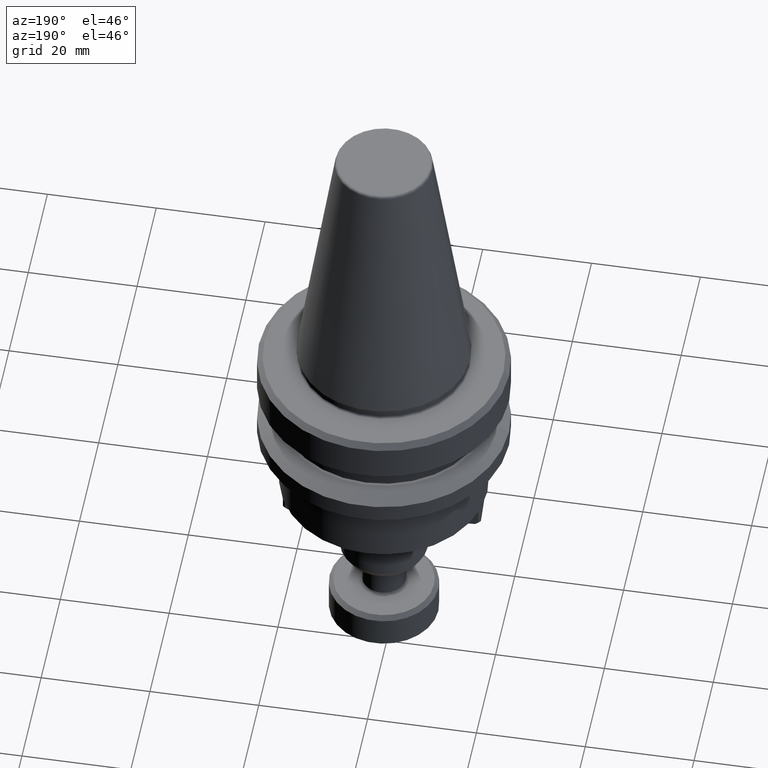
[diagram: clean part render]
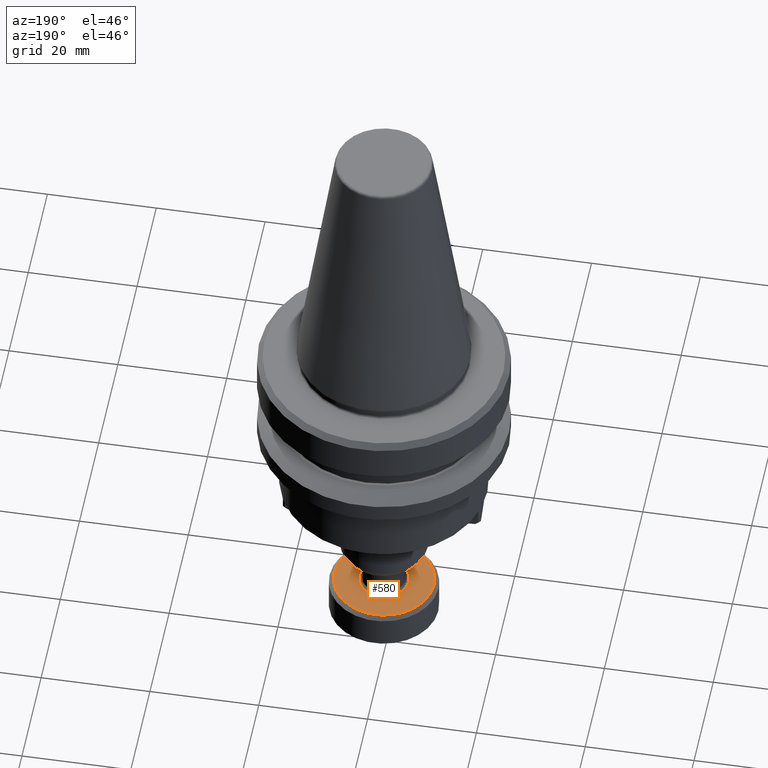
[diagram: same view with one face highlighted and labeled with its STEP entity id]
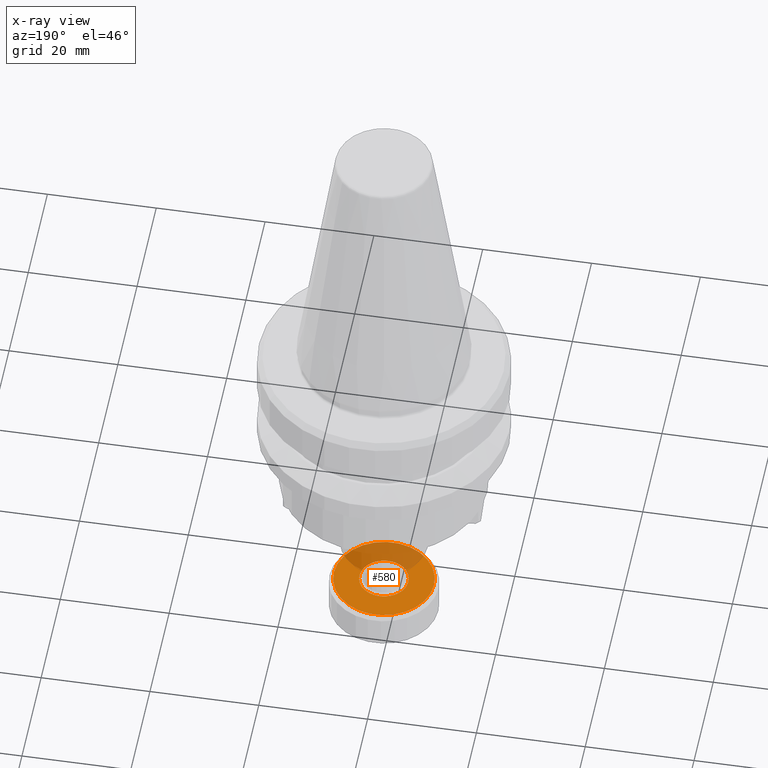
[diagram: x-ray of the same camera — body ghosted, the highlighted face saturated]
A machine part, auxiliary view. The second image highlights one B-rep face of the part: STEP entity #580.
The next image is the same camera in x-ray: the body ghosted, the highlighted face saturated — about 32% of this face is hidden behind the body in this view.
In plain terms, the highlighted planar face has unit normal (-0, -0, -1).
Its self-contained STEP definition (entity closure, byte-faithful):
#44 = CARTESIAN_POINT ( 'NONE',  ( 38.36261060714339500, 56.23795810838866100, 16.07808018129033900 ) ) ;
#49 = CARTESIAN_POINT ( 'NONE',  ( 46.10113051853559100, 52.28122963473677500, 16.07808018129033600 ) ) ;
#68 = CARTESIAN_POINT ( 'NONE',  ( 41.10824882425460200, 48.75618803442938500, 16.07808018129033600 ) ) ;
#123 = CIRCLE ( 'NONE', #3481, 9.200000000000061500 ) ;
#152 = CARTESIAN_POINT ( 'NONE',  ( 44.93848420210185400, 56.34153861001497200, 16.07808018129033200 ) ) ;
#161 = CARTESIAN_POINT ( 'NONE',  ( 46.10480471988822200, 54.15330075542826200, 16.07808018129033600 ) ) ;
#169 = CARTESIAN_POINT ( 'NONE',  ( 42.66659480719015100, 48.82238925279947500, 16.07808018129033200 ) ) ;
#174 = CARTESIAN_POINT ( 'NONE',  ( 37.25032348748377600, 53.90157765005577100, 16.07808018129032800 ) ) ;
#175 = CARTESIAN_POINT ( 'NONE',  ( 45.47840010664511800, 50.74679128583353100, 16.07808018129033600 ) ) ;
#178 = CARTESIAN_POINT ( 'NONE',  ( 42.84022122352584500, 48.86358545194721600, 16.07808018129032800 ) ) ;
#184 = CARTESIAN_POINT ( 'NONE',  ( 44.22719130882006800, 49.46968674650050000, 16.07808018129032800 ) ) ;
#193 = CARTESIAN_POINT ( 'NONE',  ( 39.54801287624982100, 57.16960645895795100, 16.07808018113062000 ) ) ;
#208 = CARTESIAN_POINT ( 'NONE',  ( 41.87846747309731700, 57.71765971664972700, 16.07808018129033200 ) ) ;
#247 = CARTESIAN_POINT ( 'NONE',  ( 40.37910425474137100, 57.52167928917994300, 16.07808018129033200 ) ) ;
#249 = CARTESIAN_POINT ( 'NONE',  ( 46.20077907606975000, 53.08409253390661300, 16.07808018129032500 ) ) ;
#254 = CARTESIAN_POINT ( 'NONE',  ( 37.21184208134368300, 52.86210188235280300, 16.07808018129033600 ) ) ;
#284 = CARTESIAN_POINT ( 'NONE',  ( 45.80026597418010000, 51.36419616246598000, 16.07808018129033600 ) ) ;
#321 = CARTESIAN_POINT ( 'NONE',  ( 41.69949667897864700, 53.21725052380196500, 16.07808018129027500 ) ) ;
#322 = CARTESIAN_POINT ( 'NONE',  ( 45.99434977421467600, 51.85777594774702900, 16.07808018129033200 ) ) ;
#336 = CARTESIAN_POINT ( 'NONE',  ( 38.52265960716115200, 56.40437465809249300, 16.07808018129033900 ) ) ;
#337 = EDGE_LOOP ( 'NONE', ( #2168, #1628 ) ) ;
#424 = CARTESIAN_POINT ( 'NONE',  ( 41.52052588485839400, 48.71684133095409700, 16.07808018129033600 ) ) ;
#426 = CARTESIAN_POINT ( 'NONE',  ( 43.65818578562450400, 57.27500901164050600, 16.07808018129033600 ) ) ;
#438 = CARTESIAN_POINT ( 'NONE',  ( 45.80834317649598800, 51.38216805408726600, 16.07808018129033600 ) ) ;
#454 = CARTESIAN_POINT ( 'NONE',  ( 44.87633375079614200, 50.03012638951145900, 16.07808018129033200 ) ) ;
#473 = CARTESIAN_POINT ( 'NONE',  ( 37.20021330973987300, 53.13342522475311100, 16.07808018129033200 ) ) ;
#497 = CIRCLE ( 'NONE', #1167, 9.200000000000061500 ) ;
#514 = CARTESIAN_POINT ( 'NONE',  ( 43.85098048182903300, 49.26489458871217400, 16.07808018113062000 ) ) ;
#515 = CARTESIAN_POINT ( 'NONE',  ( 43.24251136859881200, 57.44449410940730200, 16.07808018129033200 ) ) ;
#532 = CARTESIAN_POINT ( 'NONE',  ( 46.18844409206621300, 52.82836411246894000, 16.07808018129033600 ) ) ;
#541 = CARTESIAN_POINT ( 'NONE',  ( 39.29644597859084600, 49.41252362093741400, 16.07808018129033200 ) ) ;
#559 = CARTESIAN_POINT ( 'NONE',  ( 42.70396627009851200, 48.83074286362919000, 16.07808018129033600 ) ) ;
#573 = CARTESIAN_POINT ( 'NONE',  ( 39.54801287624982100, 57.16960645895795100, 16.07808018113062000 ) ) ;
#580 = ADVANCED_FACE ( 'NONE', ( #2099, #2824 ), #3461, .F. ) ;
#582 = EDGE_CURVE ( 'NONE', #2724, #2669, #3174, .T. ) ;
#615 = CARTESIAN_POINT ( 'NONE',  ( 39.54801287624982100, 57.16960645895795100, 16.07808018113062000 ) ) ;
#645 = CARTESIAN_POINT ( 'NONE',  ( 42.74952783016098600, 48.84130137958861400, 16.07808018129033900 ) ) ;
#656 = CARTESIAN_POINT ( 'NONE',  ( 41.99047054747984500, 48.71187119533995300, 16.07808018129033900 ) ) ;
#673 = CARTESIAN_POINT ( 'NONE',  ( 37.34138517551197400, 54.34936489404386600, 16.07808018129033200 ) ) ;
#679 = CARTESIAN_POINT ( 'NONE',  ( 37.55120955811170100, 54.96214507282152800, 16.07808018129033600 ) ) ;
#689 = B_SPLINE_CURVE_WITH_KNOTS ( 'NONE', 3,
 ( #193, #2908, #2349, #247, #1595, #1864, #3490, #2944, #3216, #3493, #2302, #2851, #208, #968, #1243, #1773, #3165, #1654, #1857, #715, #3118, #2625, #2090, #1583, #2886, #515, #3480, #426, #1286, #2584, #1508, #704, #964, #2032, #2883, #3394, #1542, #152, #1809, #2070, #1007, #1783, #2536, #2597, #1070, #3420, #1497, #161, #2859, #3405, #2315, #2193, #3278, #1333, #249, #532, #3144, #2946, #3220, #49, #818, #1346, #322, #1523, #1257, #3131, #438, #284, #1120, #2176, #175, #983, #1008, #2046, #2627, #2337, #2884, #454, #740, #184, #1794 ),
 .UNSPECIFIED., .F., .F.,
 ( 4, 1, 1, 1, 1, 1, 2, 2, 1, 1, 1, 1, 1, 2, 2, 1, 1, 1, 2, 2, 1, 1, 1, 2, 2, 1, 1, 2, 2, 2, 1, 1, 2, 2, 1, 1, 1, 2, 2, 1, 1, 1, 2, 2, 1, 1, 1, 1, 2, 2, 1, 1, 1, 1, 1, 2, 2, 4 ),
 ( 0.0000000000000000000, 0.06250000000001285100, 0.09375000000001927600, 0.1093750000000215000, 0.1171875000000226200, 0.1210937500000231800, 0.1230468750000224700, 0.1250000000000217600, 0.1875000000000061900, 0.2187499999999992000, 0.2343749999999956700, 0.2421874999999947800, 0.2460937499999934500, 0.2480468749999927000, 0.2499999999999919200, 0.2812499999999751300, 0.2968749999999674100, 0.3046874999999635300, 0.3085937499999615900, 0.3124999999999596400, 0.3437499999999452100, 0.3593749999999388300, 0.3671874999999356600, 0.3710937499999350000, 0.3749999999999342700, 0.4062499999999248900, 0.4218749999999197300, 0.4296874999999175700, 0.4374999999999153500, 0.4999999999999033000, 0.5312499999998975300, 0.5468749999998944200, 0.5546874999998934200, 0.5624999999998925300, 0.5937499999998874200, 0.6093749999998842000, 0.6171874999998832000, 0.6210937499998826500, 0.6249999999998820900, 0.6562499999998832000, 0.6718749999998830900, 0.6796874999998824300, 0.6835937499998822100, 0.6874999999998819800, 0.7187499999998832000, 0.7343749999998836500, 0.7421874999998836500, 0.7460937499998833200, 0.7480468749998834300, 0.7499999999998836500, 0.8124999999998781000, 0.8437499999998748800, 0.8593749999998726600, 0.8671874999998719900, 0.8710937499998722100, 0.8730468749998729900, 0.8749999999998736600, 1.000000000000000000 ),
 .UNSPECIFIED. ) ;
#704 = CARTESIAN_POINT ( 'NONE',  ( 44.13858180012547900, 56.99896671346100200, 16.07808018129033200 ) ) ;
#715 = CARTESIAN_POINT ( 'NONE',  ( 42.50612869445569000, 57.64716810146793300, 16.07808018129033200 ) ) ;
#725 = CARTESIAN_POINT ( 'NONE',  ( 37.19821428188720300, 53.35040851369407000, 16.07808018129033900 ) ) ;
#740 = CARTESIAN_POINT ( 'NONE',  ( 44.56739141210816500, 49.72318998059557100, 16.07808018129033600 ) ) ;
#753 = EDGE_LOOP ( 'NONE', ( #3168, #3082 ) ) ;
#797 = CARTESIAN_POINT ( 'NONE',  ( 38.62059703964018100, 49.93311251137426900, 16.07808018129033200 ) ) ;
#816 = CARTESIAN_POINT ( 'NONE',  ( 37.27655645001110700, 54.04857072999870800, 16.07808018129033900 ) ) ;
#818 = CARTESIAN_POINT ( 'NONE',  ( 46.09626902699262300, 52.25870783131547600, 16.07808018129033600 ) ) ;
#873 = CARTESIAN_POINT ( 'NONE',  ( 40.39704652929557200, 48.90854132624748700, 16.07808018129033900 ) ) ;
#916 = DIRECTION ( 'NONE',  ( 4.513101726118517000E-016, -0.0000000000000000000, -1.000000000000000000 ) ) ;
#962 = CARTESIAN_POINT ( 'NONE',  ( 42.67133533011433100, 48.82343725327101000, 16.07808018129033900 ) ) ;
#964 = CARTESIAN_POINT ( 'NONE',  ( 44.15540880190287300, 56.98806422663084700, 16.07808018129033600 ) ) ;
#968 = CARTESIAN_POINT ( 'NONE',  ( 42.11393145277901300, 57.69917563864250100, 16.07808018129033200 ) ) ;
#977 = DIRECTION ( 'NONE',  ( 0.4781075118440847900, -0.8783013190917217100, 5.283347858263350400E-017 ) ) ;
#983 = CARTESIAN_POINT ( 'NONE',  ( 45.19245328965641300, 50.37382032113588100, 16.07808018129033200 ) ) ;
#1007 = CARTESIAN_POINT ( 'NONE',  ( 45.47243270684744900, 55.69842843133844200, 16.07808018129033600 ) ) ;
#1008 = CARTESIAN_POINT ( 'NONE',  ( 45.03638275081394900, 50.19654293921498600, 16.07808018129033600 ) ) ;
#1070 = CARTESIAN_POINT ( 'NONE',  ( 46.01016003994361400, 54.50986032203771000, 16.07808018129033200 ) ) ;
#1099 = CARTESIAN_POINT ( 'NONE',  ( 40.21048228414555600, 48.97068209521165700, 16.07808018129034300 ) ) ;
#1120 = CARTESIAN_POINT ( 'NONE',  ( 45.79564429365679200, 51.35401245577679000, 16.07808018129033200 ) ) ;
#1165 = CARTESIAN_POINT ( 'NONE',  ( 37.40464358374154600, 54.57672509985524600, 16.07808018129033600 ) ) ;
#1167 = AXIS2_PLACEMENT_3D ( 'NONE', #1511, #916, #1406 ) ;
#1173 = CARTESIAN_POINT ( 'NONE',  ( 38.52400896482952000, 50.02840069584610200, 16.07808018129033200 ) ) ;
#1188 = CARTESIAN_POINT ( 'NONE',  ( 37.19984164685157400, 53.15736543615418700, 16.07808018129033200 ) ) ;
#1243 = CARTESIAN_POINT ( 'NONE',  ( 42.23178635471251100, 57.68593384708885500, 16.07808018129033600 ) ) ;
#1244 = CARTESIAN_POINT ( 'NONE',  ( 37.57862586717075700, 55.02534336938225600, 16.07808018129033200 ) ) ;
#1257 = CARTESIAN_POINT ( 'NONE',  ( 45.84778379984511800, 51.47235597478167800, 16.07808018129033200 ) ) ;
#1286 = CARTESIAN_POINT ( 'NONE',  ( 43.92020916514362500, 57.13284382205928600, 16.07808018129033200 ) ) ;
#1290 = CARTESIAN_POINT ( 'NONE',  ( 43.37234923443308800, 49.02996701841351500, 16.07808018129033600 ) ) ;
#1333 = CARTESIAN_POINT ( 'NONE',  ( 46.19915171110570600, 53.27713561145016300, 16.07808018129033200 ) ) ;
#1346 = CARTESIAN_POINT ( 'NONE',  ( 46.05760818244468900, 52.08513615355908400, 16.07808018129033600 ) ) ;
#1368 = CARTESIAN_POINT ( 'NONE',  ( 50.89949667897870700, 53.21725052380196500, 16.07808018129027900 ) ) ;
#1371 = CARTESIAN_POINT ( 'NONE',  ( 42.68439384506170600, 48.82634282540798400, 16.07808018129033200 ) ) ;
#1406 = DIRECTION ( 'NONE',  ( -1.000000000000000000, 0.0000000000000000000, -3.771137991253903400E-016 ) ) ;
#1442 = CARTESIAN_POINT ( 'NONE',  ( 38.50334320522002700, 56.38501834668301900, 16.07808018129033900 ) ) ;
#1469 = CARTESIAN_POINT ( 'NONE',  ( 37.29786283942160500, 54.15327141286636700, 16.07808018129033900 ) ) ;
#1497 = CARTESIAN_POINT ( 'NONE',  ( 46.04859591474245000, 54.37373382426901000, 16.07808018129032800 ) ) ;
#1508 = CARTESIAN_POINT ( 'NONE',  ( 44.10254737936727300, 57.02197742666604800, 16.07808018129033600 ) ) ;
#1511 = CARTESIAN_POINT ( 'NONE',  ( 41.69949667897864700, 53.21725052380196500, 16.07808018129027500 ) ) ;
#1523 = CARTESIAN_POINT ( 'NONE',  ( 45.90005472082230400, 51.59964259556007000, 16.07808018129033200 ) ) ;
#1542 = CARTESIAN_POINT ( 'NONE',  ( 44.87498439312689400, 56.40610035175822600, 16.07808018129033200 ) ) ;
#1583 = CARTESIAN_POINT ( 'NONE',  ( 43.18851107381208700, 57.46381895239228000, 16.07808018129032800 ) ) ;
#1588 = DIRECTION ( 'NONE',  ( -1.987432607023972400E-016, -1.683410023859891200E-016, -1.000000000000000000 ) ) ;
#1595 = CARTESIAN_POINT ( 'NONE',  ( 40.55877213443108800, 57.57091559565655100, 16.07808018129033600 ) ) ;
#1628 = ORIENTED_EDGE ( 'NONE', *, *, #3279, .T. ) ;
#1640 = AXIS2_PLACEMENT_3D ( 'NONE', #2040, #1588, #977 ) ;
#1654 = CARTESIAN_POINT ( 'NONE',  ( 42.33286995622842100, 57.67246482351339400, 16.07808018129033600 ) ) ;
#1692 = CARTESIAN_POINT ( 'NONE',  ( 38.20654006830101700, 56.06068072646761600, 16.07808018129033600 ) ) ;
#1718 = CARTESIAN_POINT ( 'NONE',  ( 39.35070723331895000, 49.37841276119067400, 16.07808018129033600 ) ) ;
#1748 = CARTESIAN_POINT ( 'NONE',  ( 38.85533774363953800, 49.72165441127236100, 16.07808018129033900 ) ) ;
#1767 = CARTESIAN_POINT ( 'NONE',  ( 37.20127480428192300, 53.08809782196528500, 16.07808018129033900 ) ) ;
#1773 = CARTESIAN_POINT ( 'NONE',  ( 42.29074453370241600, 57.67831301317450300, 16.07808018129033600 ) ) ;
#1783 = CARTESIAN_POINT ( 'NONE',  ( 45.74156256849978100, 55.20388727475618400, 16.07808018129033200 ) ) ;
#1794 = CARTESIAN_POINT ( 'NONE',  ( 43.85098048182903300, 49.26489458871217400, 16.07808018113062000 ) ) ;
#1809 = CARTESIAN_POINT ( 'NONE',  ( 44.96876373387984000, 56.30984548613906100, 16.07808018129032800 ) ) ;
#1823 = CARTESIAN_POINT ( 'NONE',  ( 39.17180204913555700, 56.96481430110255700, 16.07808018129033200 ) ) ;
#1857 = CARTESIAN_POINT ( 'NONE',  ( 42.33994785451520900, 57.67145414460813400, 16.07808018129033600 ) ) ;
#1864 = CARTESIAN_POINT ( 'NONE',  ( 40.64946552779610300, 57.59319966801525200, 16.07808018129033200 ) ) ;
#1874 = CARTESIAN_POINT ( 'NONE',  ( 37.53915019139894600, 51.48413495155018900, 16.07808018129033900 ) ) ;
#1939 = CARTESIAN_POINT ( 'NONE',  ( 37.29418863806940000, 52.28120029217608800, 16.07808018129033900 ) ) ;
#1993 = CARTESIAN_POINT ( 'NONE',  ( 37.49893863713417400, 54.83485845204260300, 16.07808018129033600 ) ) ;
#1995 = CARTESIAN_POINT ( 'NONE',  ( 37.38883331801318400, 51.92464072556658300, 16.07808018129033600 ) ) ;
#2003 = CARTESIAN_POINT ( 'NONE',  ( 41.16720700324427200, 48.74856720051504100, 16.07808018129033200 ) ) ;
#2020 = EDGE_CURVE ( 'NONE', #3222, #3152, #123, .T. ) ;
#2027 = CARTESIAN_POINT ( 'NONE',  ( 37.30272433096471500, 54.17579321628859600, 16.07808018129033200 ) ) ;
#2029 = CARTESIAN_POINT ( 'NONE',  ( 37.59065018146113600, 55.05233299351644400, 16.07808018129034300 ) ) ;
#2032 = CARTESIAN_POINT ( 'NONE',  ( 44.32638896041812200, 56.87544329870674200, 16.07808018129033200 ) ) ;
#2040 = CARTESIAN_POINT ( 'NONE',  ( 44.00797463670590300, 61.04155922417206900, 16.07808018129033200 ) ) ;
#2044 = CARTESIAN_POINT ( 'NONE',  ( 41.08297444868263400, 48.75966837856502400, 16.07808018129033900 ) ) ;
#2046 = CARTESIAN_POINT ( 'NONE',  ( 44.95507319880566400, 50.11020627336154100, 16.07808018129032800 ) ) ;
#2065 = CARTESIAN_POINT ( 'NONE',  ( 38.51534865105298900, 56.39707810548269900, 16.07808018129033600 ) ) ;
#2070 = CARTESIAN_POINT ( 'NONE',  ( 45.25570097651504400, 56.00003807204827000, 16.07808018129033600 ) ) ;
#2090 = CARTESIAN_POINT ( 'NONE',  ( 43.13275123721832900, 57.48324737046847600, 16.07808018129033200 ) ) ;
#2099 = FACE_OUTER_BOUND ( 'NONE', #753, .T. ) ;
#2107 = CARTESIAN_POINT ( 'NONE',  ( 38.83160194584745300, 56.71131106700747200, 16.07808018129033900 ) ) ;
#2120 = CARTESIAN_POINT ( 'NONE',  ( 41.28506190517737200, 48.73532540896135900, 16.07808018129033600 ) ) ;
#2154 = CARTESIAN_POINT ( 'NONE',  ( 43.01988910321534100, 48.91282175842368900, 16.07808018129033600 ) ) ;
#2168 = ORIENTED_EDGE ( 'NONE', *, *, #582, .T. ) ;
#2176 = CARTESIAN_POINT ( 'NONE',  ( 45.67859293144182700, 51.09805131418446000, 16.07808018129033200 ) ) ;
#2180 = CARTESIAN_POINT ( 'NONE',  ( 37.92059325131237600, 55.68770976176981000, 16.07808018129033900 ) ) ;
#2193 = CARTESIAN_POINT ( 'NONE',  ( 46.19771855367551400, 53.34640322563885900, 16.07808018129033200 ) ) ;
#2270 = CARTESIAN_POINT ( 'NONE',  ( 38.44392015915163100, 56.32429477424224000, 16.07808018129033600 ) ) ;
#2299 = CARTESIAN_POINT ( 'NONE',  ( 40.66144783908720200, 48.83359912296379700, 16.07808018129033600 ) ) ;
#2302 = CARTESIAN_POINT ( 'NONE',  ( 41.00739875121313800, 57.67203621924680600, 16.07808018129033200 ) ) ;
#2315 = CARTESIAN_POINT ( 'NONE',  ( 46.19561729853823100, 53.41433229036975700, 16.07808018129033600 ) ) ;
#2337 = CARTESIAN_POINT ( 'NONE',  ( 44.89565015273724700, 50.04948270092087600, 16.07808018129033200 ) ) ;
#2349 = CARTESIAN_POINT ( 'NONE',  ( 40.02664412352345400, 57.40453402919004600, 16.07808018129033200 ) ) ;
#2356 = CARTESIAN_POINT ( 'NONE',  ( 37.72040042651558200, 55.33644973341915100, 16.07808018129033900 ) ) ;
#2388 = CARTESIAN_POINT ( 'NONE',  ( 32.49949667897858800, 53.21725052380196500, 16.07808018129027200 ) ) ;
#2391 = CARTESIAN_POINT ( 'NONE',  ( 40.26624212073957000, 48.95125367713547600, 16.07808018129033200 ) ) ;
#2409 = CARTESIAN_POINT ( 'NONE',  ( 42.39159460674294900, 48.76246482835703200, 16.07808018129033600 ) ) ;
#2420 = CARTESIAN_POINT ( 'NONE',  ( 39.47878419281602900, 49.30165722554328100, 16.07808018129033600 ) ) ;
#2426 = CARTESIAN_POINT ( 'NONE',  ( 39.26041155783222100, 49.43553433414266600, 16.07808018129033600 ) ) ;
#2508 = CARTESIAN_POINT ( 'NONE',  ( 38.43022962407739800, 50.12465556146471400, 16.07808018129033600 ) ) ;
#2530 = DIRECTION ( 'NONE',  ( -1.000000000000000000, 0.0000000000000000000, -3.771137991253903400E-016 ) ) ;
#2536 = CARTESIAN_POINT ( 'NONE',  ( 45.85984316655731900, 54.95036609605445900, 16.07808018129033200 ) ) ;
#2542 = CARTESIAN_POINT ( 'NONE',  ( 41.05904550344200000, 48.76304690299581100, 16.07808018129033900 ) ) ;
#2546 = EDGE_CURVE ( 'NONE', #3152, #3222, #497, .T. ) ;
#2548 = CARTESIAN_POINT ( 'NONE',  ( 39.07260439753815000, 49.55905774889770000, 16.07808018129033200 ) ) ;
#2565 = CARTESIAN_POINT ( 'NONE',  ( 43.85098048182903300, 49.26489458871217400, 16.07808018113062000 ) ) ;
#2584 = CARTESIAN_POINT ( 'NONE',  ( 44.04828612463972300, 57.05608828641246100, 16.07808018129033600 ) ) ;
#2585 = CARTESIAN_POINT ( 'NONE',  ( 37.28915897360795400, 54.11141191907702100, 16.07808018129033200 ) ) ;
#2597 = CARTESIAN_POINT ( 'NONE',  ( 45.96933961527949500, 54.64365283685051400, 16.07808018129033600 ) ) ;
#2625 = CARTESIAN_POINT ( 'NONE',  ( 43.00194682866284500, 57.52595972135651400, 16.07808018129033600 ) ) ;
#2627 = CARTESIAN_POINT ( 'NONE',  ( 44.91359985215479600, 50.06761344671157600, 16.07808018129033600 ) ) ;
#2667 = CARTESIAN_POINT ( 'NONE',  ( 40.89286466350240800, 48.78733294613598300, 16.07808018129033200 ) ) ;
#2669 = VERTEX_POINT ( 'NONE', #573 ) ;
#2724 = VERTEX_POINT ( 'NONE', #514 ) ;
#2735 = CARTESIAN_POINT ( 'NONE',  ( 37.21054926589052100, 53.60613693512932800, 16.07808018129033600 ) ) ;
#2783 = CARTESIAN_POINT ( 'NONE',  ( 40.17337554767048900, 48.98388395722651700, 16.07808018129033600 ) ) ;
#2812 = CARTESIAN_POINT ( 'NONE',  ( 37.24302649827428300, 52.54770523721693800, 16.07808018129033600 ) ) ;
#2824 = FACE_BOUND ( 'NONE', #337, .T. ) ;
#2851 = CARTESIAN_POINT ( 'NONE',  ( 41.40852281047534700, 57.72262985226382900, 16.07808018129033200 ) ) ;
#2859 = CARTESIAN_POINT ( 'NONE',  ( 46.15596685968359500, 53.88679581038770300, 16.07808018129033600 ) ) ;
#2883 = CARTESIAN_POINT ( 'NONE',  ( 44.54365561431595900, 56.71284663633244300, 16.07808018129033200 ) ) ;
#2884 = CARTESIAN_POINT ( 'NONE',  ( 44.88364470690429200, 50.03742294212121800, 16.07808018129033200 ) ) ;
#2886 = CARTESIAN_POINT ( 'NONE',  ( 43.22561781028697000, 57.45061709037741300, 16.07808018129033200 ) ) ;
#2899 = CARTESIAN_POINT ( 'NONE',  ( 37.36297672930135100, 52.01435661880918800, 16.07808018129033900 ) ) ;
#2908 = CARTESIAN_POINT ( 'NONE',  ( 39.73632223075630100, 57.27211355427864000, 16.07808018129033200 ) ) ;
#2926 = CARTESIAN_POINT ( 'NONE',  ( 40.15648198935822000, 48.99000693819675000, 16.07808018129033200 ) ) ;
#2939 = CARTESIAN_POINT ( 'NONE',  ( 38.14329238144232900, 50.43446297555679800, 16.07808018129033600 ) ) ;
#2944 = CARTESIAN_POINT ( 'NONE',  ( 40.71459951289551100, 57.60815822219591800, 16.07808018129033200 ) ) ;
#2946 = CARTESIAN_POINT ( 'NONE',  ( 46.12243690794593200, 52.38593031760271400, 16.07808018129033600 ) ) ;
#3062 = DIRECTION ( 'NONE',  ( 4.513101726118517000E-016, -0.0000000000000000000, -1.000000000000000000 ) ) ;
#3073 = CARTESIAN_POINT ( 'NONE',  ( 37.65743078945691700, 51.23061377284814500, 16.07808018129033600 ) ) ;
#3077 = CARTESIAN_POINT ( 'NONE',  ( 41.06612340172878800, 48.76203622409053700, 16.07808018129033600 ) ) ;
#3082 = ORIENTED_EDGE ( 'NONE', *, *, #2020, .F. ) ;
#3094 = CARTESIAN_POINT ( 'NONE',  ( 37.60334906430047400, 55.08048859182719100, 16.07808018129033900 ) ) ;
#3105 = CARTESIAN_POINT ( 'NONE',  ( 39.24358455605454300, 49.44643682097304800, 16.07808018129033600 ) ) ;
#3118 = CARTESIAN_POINT ( 'NONE',  ( 42.73754551887155600, 57.60090192464018300, 16.07808018129033200 ) ) ;
#3131 = CARTESIAN_POINT ( 'NONE',  ( 45.82036749078625300, 51.40915767822127700, 16.07808018129033200 ) ) ;
#3144 = CARTESIAN_POINT ( 'NONE',  ( 46.14866987047308600, 52.53292339754384000, 16.07808018129033200 ) ) ;
#3152 = VERTEX_POINT ( 'NONE', #2388 ) ;
#3154 = CARTESIAN_POINT ( 'NONE',  ( 39.74080757233596700, 49.15949203596158400, 16.07808018129033900 ) ) ;
#3165 = CARTESIAN_POINT ( 'NONE',  ( 42.31601890927449700, 57.67483266903891300, 16.07808018129033200 ) ) ;
#3168 = ORIENTED_EDGE ( 'NONE', *, *, #2546, .F. ) ;
#3171 = CARTESIAN_POINT ( 'NONE',  ( 38.48539350580249200, 56.36688760089231200, 16.07808018129033900 ) ) ;
#3174 = B_SPLINE_CURVE_WITH_KNOTS ( 'NONE', 3,
 ( #2565, #3392, #1290, #2154, #178, #645, #559, #1371, #962, #169, #2409, #656, #424, #2120, #2003, #68, #2044, #3077, #2542, #2667, #2299, #873, #2391, #1099, #2783, #2926, #3390, #3154, #2420, #1718, #541, #2426, #3105, #2548, #1748, #797, #1173, #3298, #2508, #2939, #3372, #3073, #1874, #3199, #1995, #2899, #3400, #1939, #2812, #254, #3337, #1767, #473, #1188, #725, #2735, #174, #816, #2585, #1469, #2027, #673, #1165, #1993, #679, #1244, #2029, #3458, #3094, #2356, #2180, #1692, #44, #2270, #3171, #1442, #2065, #336, #2107, #1823, #615 ),
 .UNSPECIFIED., .F., .F.,
 ( 4, 1, 1, 1, 1, 1, 2, 2, 1, 1, 1, 1, 1, 2, 2, 1, 1, 1, 2, 2, 1, 1, 1, 2, 2, 1, 1, 2, 2, 2, 1, 1, 2, 2, 1, 1, 1, 2, 2, 1, 1, 1, 2, 2, 1, 1, 1, 1, 2, 2, 1, 1, 1, 1, 1, 2, 2, 4 ),
 ( 0.0000000000000000000, 0.06249999999995074800, 0.09374999999992611500, 0.1093749999999138100, 0.1171874999999086400, 0.1210937499999072700, 0.1230468749999065900, 0.1249999999999059100, 0.1874999999998999700, 0.2187499999998978300, 0.2343749999998967800, 0.2421874999998962200, 0.2460937499998968300, 0.2480468749998971400, 0.2499999999998974700, 0.2812499999999049100, 0.2968749999999080200, 0.3046874999999086800, 0.3085937499999098500, 0.3124999999999110700, 0.3437499999999119600, 0.3593749999999126800, 0.3671874999999127400, 0.3710937499999124600, 0.3749999999999121300, 0.4062499999999112900, 0.4218749999999104100, 0.4296874999999095200, 0.4374999999999086300, 0.4999999999999039700, 0.5312499999999018600, 0.5468749999999009700, 0.5546874999999007500, 0.5624999999999004100, 0.5937499999999000800, 0.6093749999998994100, 0.6171874999998984100, 0.6210937499998985300, 0.6249999999998987500, 0.6562499999998986400, 0.6718749999998979700, 0.6796874999998969700, 0.6835937499998965300, 0.6874999999998960800, 0.7187499999999000800, 0.7343749999999018600, 0.7421874999999034100, 0.7460937499999038500, 0.7480468749999047400, 0.7499999999999056300, 0.8124999999999357200, 0.8437499999999511500, 0.8593749999999588100, 0.8671874999999632500, 0.8710937499999648100, 0.8730468749999650300, 0.8749999999999652500, 1.000000000000000000 ),
 .UNSPECIFIED. ) ;
#3199 = CARTESIAN_POINT ( 'NONE',  ( 37.42965374267704700, 51.79084821075395700, 16.07808018129033900 ) ) ;
#3216 = CARTESIAN_POINT ( 'NONE',  ( 40.72765802784289900, 57.61106379433292800, 16.07808018129033600 ) ) ;
#3220 = CARTESIAN_POINT ( 'NONE',  ( 46.10983438434917800, 52.32308912852539600, 16.07808018129033200 ) ) ;
#3222 = VERTEX_POINT ( 'NONE', #1368 ) ;
#3278 = CARTESIAN_POINT ( 'NONE',  ( 46.19878004821747200, 53.30107582285094000, 16.07808018129033900 ) ) ;
#3279 = EDGE_CURVE ( 'NONE', #2669, #2724, #689, .T. ) ;
#3298 = CARTESIAN_POINT ( 'NONE',  ( 38.46050915585491500, 50.09296243758915800, 16.07808018129033200 ) ) ;
#3337 = CARTESIAN_POINT ( 'NONE',  ( 37.20337605941930500, 53.02016875723448000, 16.07808018129033200 ) ) ;
#3372 = CARTESIAN_POINT ( 'NONE',  ( 37.92656065111095400, 50.73607261626470000, 16.07808018129033600 ) ) ;
#3390 = CARTESIAN_POINT ( 'NONE',  ( 39.97546097282585000, 49.05708624211403900, 16.07808018129033600 ) ) ;
#3392 = CARTESIAN_POINT ( 'NONE',  ( 43.66267112720054700, 49.16238749332505600, 16.07808018129032800 ) ) ;
#3394 = CARTESIAN_POINT ( 'NONE',  ( 44.77839631831577800, 56.50138853623032300, 16.07808018129033600 ) ) ;
#3400 = CARTESIAN_POINT ( 'NONE',  ( 37.35039744321473200, 52.06076722333481400, 16.07808018129033600 ) ) ;
#3405 = CARTESIAN_POINT ( 'NONE',  ( 46.18715127661404600, 53.57239916525161000, 16.07808018129033200 ) ) ;
#3420 = CARTESIAN_POINT ( 'NONE',  ( 46.03601662865563100, 54.42014442879495600, 16.07808018129033200 ) ) ;
#3458 = CARTESIAN_POINT ( 'NONE',  ( 37.59872738377711000, 55.07030488513787200, 16.07808018129033900 ) ) ;
#3461 = PLANE ( 'NONE',  #1640 ) ;
#3480 = CARTESIAN_POINT ( 'NONE',  ( 43.42353238513325000, 57.37741480548886800, 16.07808018129033200 ) ) ;
#3481 = AXIS2_PLACEMENT_3D ( 'NONE', #321, #3062, #2530 ) ;
#3490 = CARTESIAN_POINT ( 'NONE',  ( 40.69502708785866900, 57.60375818397469100, 16.07808018129032800 ) ) ;
#3493 = CARTESIAN_POINT ( 'NONE',  ( 40.73239855076715100, 57.61211179480444900, 16.07808018129033200 ) ) ;